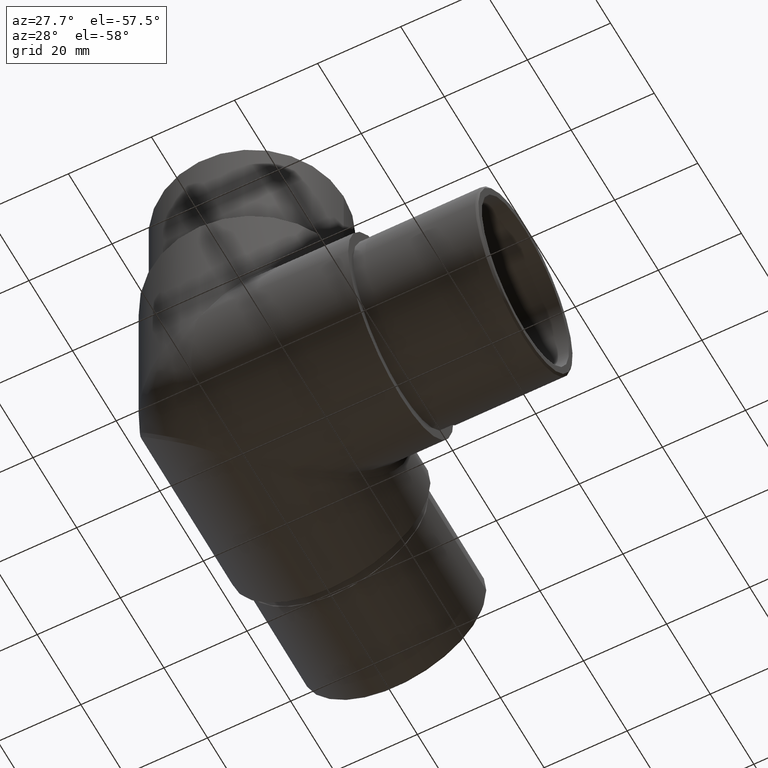
[diagram: clean part render]
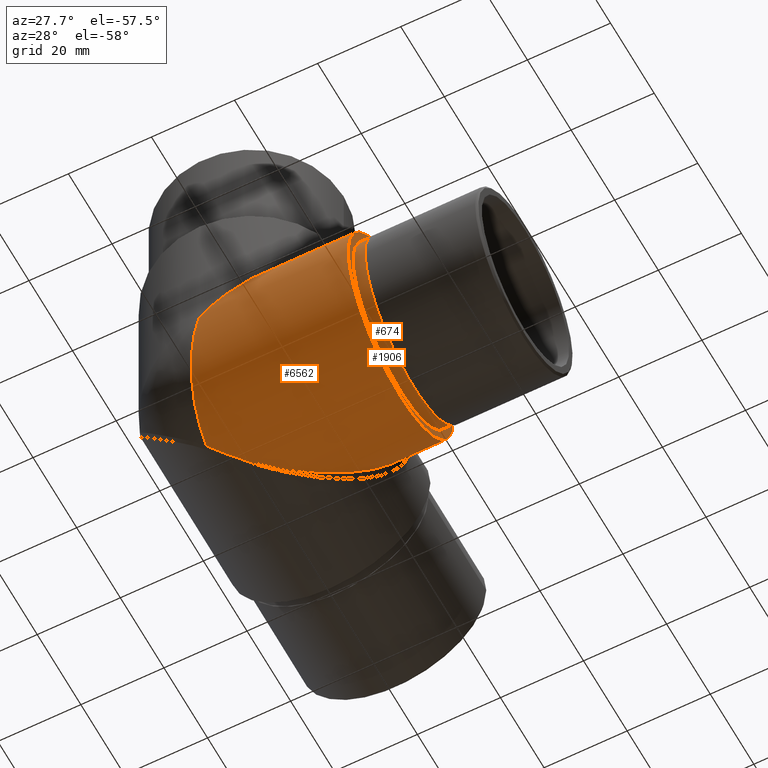
[diagram: same view with one multi-face feature highlighted, each face labeled with its STEP entity id]
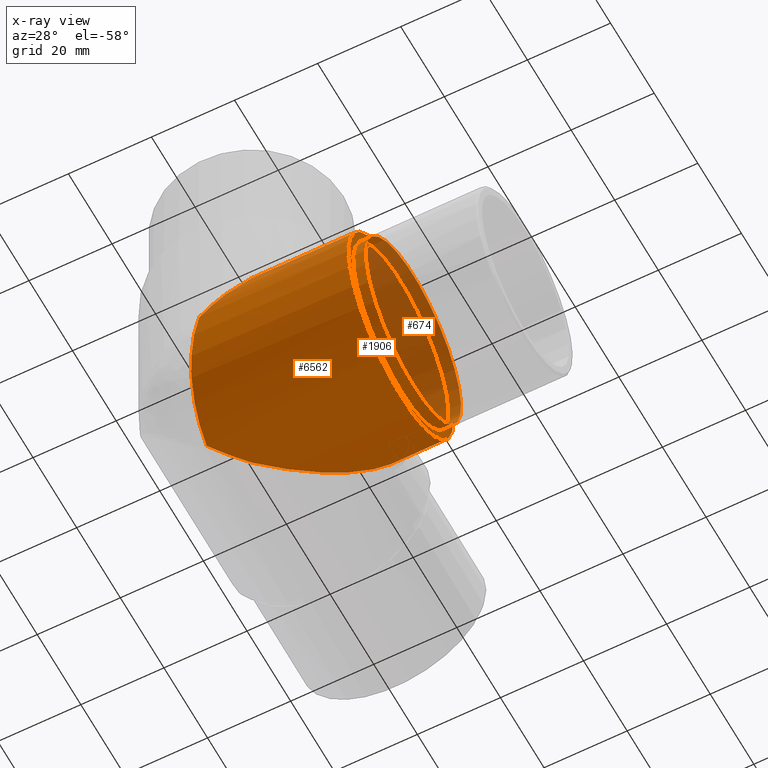
[diagram: x-ray of the same camera — body ghosted, the whole feature saturated]
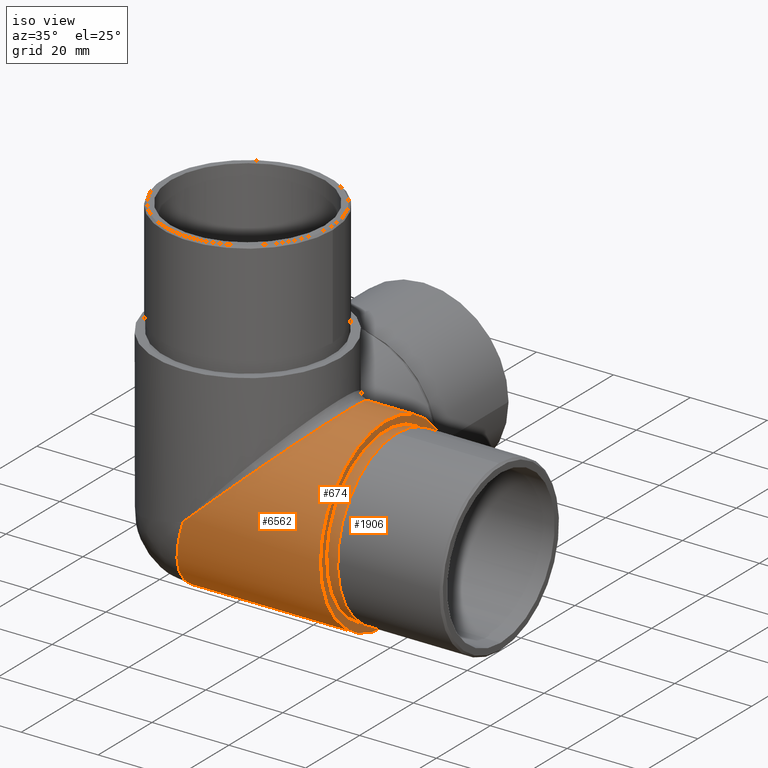
[diagram: same view with one multi-face feature highlighted, each face labeled with its STEP entity id]
A machine part, auxiliary view. The highlighted faces form ONE feature: a stepped (counterbored) hole: 2 coaxial cylindrical walls of radii 21.9 -> 24.15 mm joined by 1 annular planar shoulder face(s). The faces share edges in the B-rep.
The next image is the same camera in x-ray: the body ghosted and the whole hole feature saturated, so the bore chain is visible through the body.
A second angle (iso view) of the same feature is appended — it is thin or edge-on in the first view.
Their STEP definitions:
[1] entity #6562 (Cylinder):
#125 = VERTEX_POINT ( 'NONE', #4727 ) ;
#902 = CARTESIAN_POINT ( 'NONE',  ( -24.15000000000001300, 24.14999999999999900, 24.15000000000000200 ) ) ;
#903 = EDGE_LOOP ( 'NONE', ( #1200, #10387, #2458, #9310 ) ) ;
#952 = VERTEX_POINT ( 'NONE', #11235 ) ;
#1200 = ORIENTED_EDGE ( 'NONE', *, *, #7541, .T. ) ;
#1913 = CARTESIAN_POINT ( 'NONE',  ( -3.265343514882625100, -7.047581271522010500E-012, 13.34752796103898800 ) ) ;
#2090 = ORIENTED_EDGE ( 'NONE', *, *, #5902, .F. ) ;
#2416 = FACE_OUTER_BOUND ( 'NONE', #903, .T. ) ;
#2458 = ORIENTED_EDGE ( 'NONE', *, *, #8643, .T. ) ;
#2982 = CARTESIAN_POINT ( 'NONE',  ( -6.933173538765667700, 16.59080627714714500, 1.213542334083439500 ) ) ;
#3985 = CARTESIAN_POINT ( 'NONE',  ( 5.684341886080801500E-011, 24.15000000000001600, -6.938893903907228400E-015 ) ) ;
#4165 =( BOUNDED_CURVE ( )  B_SPLINE_CURVE ( 3, ( #10898, #4870, #11861, #7755 ),
 .UNSPECIFIED., .F., .T. ) 
 B_SPLINE_CURVE_WITH_KNOTS ( ( 4, 4 ),
 ( 4.712388980385863000, 7.068583470577034500 ),
 .UNSPECIFIED. ) 
 CURVE ( )  GEOMETRIC_REPRESENTATION_ITEM ( )  RATIONAL_B_SPLINE_CURVE ( ( 1.000000000000000000, 0.5884556215770878600, 0.5884556215770878600, 1.000000000000000000 ) ) 
 REPRESENTATION_ITEM ( '' )  );
#4308 = FACE_OUTER_BOUND ( 'NONE', #6377, .T. ) ;
#4555 = DIRECTION ( 'NONE',  ( 0.0000000000000000000, 0.0000000000000000000, -1.000000000000000000 ) ) ;
#4727 = CARTESIAN_POINT ( 'NONE',  ( 5.684341886080801500E-011, 24.15000000000001600, -6.938893903907228400E-015 ) ) ;
#4777 = EDGE_CURVE ( 'NONE', #125, #10178, #4165, .T. ) ;
#4870 = CARTESIAN_POINT ( 'NONE',  ( 27.37045795732557400, 49.42711509252056600, 2.964564470492493500E-011 ) ) ;
#4890 = VERTEX_POINT ( 'NONE', #8870 ) ;
#5499 = CARTESIAN_POINT ( 'NONE',  ( 18.49084232802821100, 41.22662876565513600, 41.22662876565511400 ) ) ;
#5503 =( BOUNDED_CURVE ( )  B_SPLINE_CURVE ( 3, ( #5831, #6707, #11864, #5697 ),
 .UNSPECIFIED., .F., .F. ) 
 B_SPLINE_CURVE_WITH_KNOTS ( ( 4, 4 ),
 ( 5.497787143782137100, 7.853981633973309500 ),
 .UNSPECIFIED. ) 
 CURVE ( )  GEOMETRIC_REPRESENTATION_ITEM ( )  RATIONAL_B_SPLINE_CURVE ( ( 1.000000000000000000, 0.5884556215770875300, 0.5884556215770875300, 1.000000000000000000 ) ) 
 REPRESENTATION_ITEM ( '' )  );
#5697 = CARTESIAN_POINT ( 'NONE',  ( 5.684341886080801500E-011, 3.469446951953614200E-015, 24.14999999999999100 ) ) ;
#5831 = CARTESIAN_POINT ( 'NONE',  ( 18.49084232802821100, 41.22662876565513600, 41.22662876565511400 ) ) ;
#5902 = EDGE_CURVE ( 'NONE', #4890, #4890, #12910, .T. ) ;
#6377 = EDGE_LOOP ( 'NONE', ( #2090 ) ) ;
#6562 = ADVANCED_FACE ( 'NONE', ( #2416, #4308 ), #6983, .T. ) ;
#6707 = CARTESIAN_POINT ( 'NONE',  ( 37.84467875381275800, 23.35300927492106700, 59.10024825638920000 ) ) ;
#6921 = AXIS2_PLACEMENT_3D ( 'NONE', #11251, #8448, #4555 ) ;
#6983 = CYLINDRICAL_SURFACE ( 'NONE', #12778, 24.15000000000000900 ) ;
#7271 =( BOUNDED_CURVE ( )  B_SPLINE_CURVE ( 3, ( #2982, #9976, #11063, #3985 ),
 .UNSPECIFIED., .F., .F. ) 
 B_SPLINE_CURVE_WITH_KNOTS ( ( 4, 4 ),
 ( 4.394028243512486200, 4.712388980385862100 ),
 .UNSPECIFIED. ) 
 CURVE ( )  GEOMETRIC_REPRESENTATION_ITEM ( )  RATIONAL_B_SPLINE_CURVE ( ( 1.000000000000000000, 0.9915716893227704000, 0.9915716893227704000, 1.000000000000000000 ) ) 
 REPRESENTATION_ITEM ( '' )  );
#7541 = EDGE_CURVE ( 'NONE', #9508, #125, #7271, .T. ) ;
#7755 = CARTESIAN_POINT ( 'NONE',  ( 18.49084232802821100, 41.22662876565513600, 41.22662876565511400 ) ) ;
#7989 = EDGE_CURVE ( 'NONE', #952, #9508, #8019, .T. ) ;
#8019 =( BOUNDED_CURVE ( )  B_SPLINE_CURVE ( 3, ( #9795, #1913, #8045, #9123 ),
 .UNSPECIFIED., .F., .T. ) 
 B_SPLINE_CURVE_WITH_KNOTS ( ( 4, 4 ),
 ( 1.570796326794244900, 2.823231916717590100 ),
 .UNSPECIFIED. ) 
 CURVE ( )  GEOMETRIC_REPRESENTATION_ITEM ( )  RATIONAL_B_SPLINE_CURVE ( ( 1.000000000000000000, 0.8734999932208118400, 0.8734999932208118400, 1.000000000000000000 ) ) 
 REPRESENTATION_ITEM ( '' )  );
#8045 = CARTESIAN_POINT ( 'NONE',  ( -5.911088064616806500, 6.331160620449940000, 4.594825101301929700 ) ) ;
#8448 = DIRECTION ( 'NONE',  ( 1.000000000000000000, 0.0000000000000000000, 0.0000000000000000000 ) ) ;
#8643 = EDGE_CURVE ( 'NONE', #10178, #952, #5503, .T. ) ;
#8822 = DIRECTION ( 'NONE',  ( 1.000000000000000000, -0.0000000000000000000, -0.0000000000000000000 ) ) ;
#8870 = CARTESIAN_POINT ( 'NONE',  ( 35.84999999999999400, 24.15000000000001600, 0.0000000000000000000 ) ) ;
#8914 = DIRECTION ( 'NONE',  ( 0.0000000000000000000, 0.0000000000000000000, -1.000000000000000000 ) ) ;
#9123 = CARTESIAN_POINT ( 'NONE',  ( -6.933173538765667700, 16.59080627714714500, 1.213542334083439500 ) ) ;
#9310 = ORIENTED_EDGE ( 'NONE', *, *, #7989, .T. ) ;
#9508 = VERTEX_POINT ( 'NONE', #10929 ) ;
#9795 = CARTESIAN_POINT ( 'NONE',  ( 5.684341886080801500E-011, 3.469446951953614200E-015, 24.14999999999999100 ) ) ;
#9976 = CARTESIAN_POINT ( 'NONE',  ( -4.691246556782749300, 19.03516458933167500, 0.4079524614447487800 ) ) ;
#10178 = VERTEX_POINT ( 'NONE', #5499 ) ;
#10387 = ORIENTED_EDGE ( 'NONE', *, *, #4777, .T. ) ;
#10898 = CARTESIAN_POINT ( 'NONE',  ( 5.684341886080801500E-011, 24.15000000000001600, -6.938893903907228400E-015 ) ) ;
#10929 = CARTESIAN_POINT ( 'NONE',  ( -6.933173538765667700, 16.59080627714714500, 1.213542334083439500 ) ) ;
#11063 = CARTESIAN_POINT ( 'NONE',  ( -2.360544832288879100, 21.57631342213198500, -3.023844713727843500E-012 ) ) ;
#11235 = CARTESIAN_POINT ( 'NONE',  ( 5.684341886080801500E-011, 3.469446951953614200E-015, 24.14999999999999100 ) ) ;
#11251 = CARTESIAN_POINT ( 'NONE',  ( 35.84999999999999400, 24.15000000000001600, 24.15000000000000600 ) ) ;
#11861 = CARTESIAN_POINT ( 'NONE',  ( 37.84467875381274400, 59.10024825638921400, 23.35300927492104300 ) ) ;
#11864 = CARTESIAN_POINT ( 'NONE',  ( 27.37045795732559800, 2.965877470644679800E-011, 49.42711509252058000 ) ) ;
#12778 = AXIS2_PLACEMENT_3D ( 'NONE', #902, #8822, #8914 ) ;
#12910 = CIRCLE ( 'NONE', #6921, 24.15000000000000600 ) ;
[2] entity #674 (Cylinder):
#674 = ADVANCED_FACE ( 'NONE', ( #3662, #1955 ), #878, .T. ) ;
#878 = CYLINDRICAL_SURFACE ( 'NONE', #2565, 21.89999999999999900 ) ;
#1212 = CARTESIAN_POINT ( 'NONE',  ( 38.84999999999999400, 24.15000000000000200, 24.14999999999998800 ) ) ;
#1955 = FACE_OUTER_BOUND ( 'NONE', #7442, .T. ) ;
#2494 = DIRECTION ( 'NONE',  ( 0.0000000000000000000, 0.0000000000000000000, -1.000000000000000000 ) ) ;
#2565 = AXIS2_PLACEMENT_3D ( 'NONE', #6749, #10729, #2767 ) ;
#2767 = DIRECTION ( 'NONE',  ( 3.168444704980469600E-016, 0.0000000000000000000, 1.000000000000000000 ) ) ;
#2776 = EDGE_LOOP ( 'NONE', ( #2950 ) ) ;
#2950 = ORIENTED_EDGE ( 'NONE', *, *, #8061, .T. ) ;
#3378 = DIRECTION ( 'NONE',  ( -1.000000000000000000, -0.0000000000000000000, 4.440892098500625200E-016 ) ) ;
#3403 = AXIS2_PLACEMENT_3D ( 'NONE', #6482, #7492, #2494 ) ;
#3662 = FACE_OUTER_BOUND ( 'NONE', #2776, .T. ) ;
#3786 = VERTEX_POINT ( 'NONE', #8781 ) ;
#3816 = CARTESIAN_POINT ( 'NONE',  ( 38.84999999999998700, 24.15000000000000200, 2.249999999999988000 ) ) ;
#3859 = EDGE_CURVE ( 'NONE', #3786, #3786, #5047, .T. ) ;
#3966 = AXIS2_PLACEMENT_3D ( 'NONE', #1212, #3378, #10250 ) ;
#4446 = ORIENTED_EDGE ( 'NONE', *, *, #3859, .T. ) ;
#5047 = CIRCLE ( 'NONE', #3403, 21.89999999999999900 ) ;
#5394 = CIRCLE ( 'NONE', #3966, 21.89999999999999900 ) ;
#6482 = CARTESIAN_POINT ( 'NONE',  ( 35.84999999999999400, 24.15000000000000200, 24.14999999999998800 ) ) ;
#6749 = CARTESIAN_POINT ( 'NONE',  ( 38.84999999999999400, 24.15000000000000200, 24.14999999999998800 ) ) ;
#7442 = EDGE_LOOP ( 'NONE', ( #4446 ) ) ;
#7492 = DIRECTION ( 'NONE',  ( 1.000000000000000000, 0.0000000000000000000, 0.0000000000000000000 ) ) ;
#8061 = EDGE_CURVE ( 'NONE', #8959, #8959, #5394, .T. ) ;
#8781 = CARTESIAN_POINT ( 'NONE',  ( 35.84999999999999400, 24.15000000000000200, 2.249999999999988000 ) ) ;
#8959 = VERTEX_POINT ( 'NONE', #3816 ) ;
#10250 = DIRECTION ( 'NONE',  ( -3.168444704980469600E-016, 0.0000000000000000000, -1.000000000000000000 ) ) ;
#10729 = DIRECTION ( 'NONE',  ( -1.000000000000000000, -0.0000000000000000000, 4.440892098500624700E-016 ) ) ;
[3] entity #1906 (Plane):
#757 = PLANE ( 'NONE',  #3472 ) ;
#1906 = ADVANCED_FACE ( 'NONE', ( #8513, #5530 ), #757, .T. ) ;
#2494 = DIRECTION ( 'NONE',  ( 0.0000000000000000000, 0.0000000000000000000, -1.000000000000000000 ) ) ;
#2709 = DIRECTION ( 'NONE',  ( 1.000000000000000000, 0.0000000000000000000, 0.0000000000000000000 ) ) ;
#2799 = DIRECTION ( 'NONE',  ( 0.0000000000000000000, 0.0000000000000000000, -1.000000000000000000 ) ) ;
#3393 = ORIENTED_EDGE ( 'NONE', *, *, #3859, .F. ) ;
#3403 = AXIS2_PLACEMENT_3D ( 'NONE', #6482, #7492, #2494 ) ;
#3472 = AXIS2_PLACEMENT_3D ( 'NONE', #11673, #2709, #2799 ) ;
#3786 = VERTEX_POINT ( 'NONE', #8781 ) ;
#3859 = EDGE_CURVE ( 'NONE', #3786, #3786, #5047, .T. ) ;
#4290 = ORIENTED_EDGE ( 'NONE', *, *, #5902, .T. ) ;
#4555 = DIRECTION ( 'NONE',  ( 0.0000000000000000000, 0.0000000000000000000, -1.000000000000000000 ) ) ;
#4890 = VERTEX_POINT ( 'NONE', #8870 ) ;
#5047 = CIRCLE ( 'NONE', #3403, 21.89999999999999900 ) ;
#5530 = FACE_OUTER_BOUND ( 'NONE', #8046, .T. ) ;
#5902 = EDGE_CURVE ( 'NONE', #4890, #4890, #12910, .T. ) ;
#6482 = CARTESIAN_POINT ( 'NONE',  ( 35.84999999999999400, 24.15000000000000200, 24.14999999999998800 ) ) ;
#6921 = AXIS2_PLACEMENT_3D ( 'NONE', #11251, #8448, #4555 ) ;
#7492 = DIRECTION ( 'NONE',  ( 1.000000000000000000, 0.0000000000000000000, 0.0000000000000000000 ) ) ;
#8046 = EDGE_LOOP ( 'NONE', ( #4290 ) ) ;
#8448 = DIRECTION ( 'NONE',  ( 1.000000000000000000, 0.0000000000000000000, 0.0000000000000000000 ) ) ;
#8513 = FACE_BOUND ( 'NONE', #10850, .T. ) ;
#8781 = CARTESIAN_POINT ( 'NONE',  ( 35.84999999999999400, 24.15000000000000200, 2.249999999999988000 ) ) ;
#8870 = CARTESIAN_POINT ( 'NONE',  ( 35.84999999999999400, 24.15000000000001600, 0.0000000000000000000 ) ) ;
#10850 = EDGE_LOOP ( 'NONE', ( #3393 ) ) ;
#11251 = CARTESIAN_POINT ( 'NONE',  ( 35.84999999999999400, 24.15000000000001600, 24.15000000000000600 ) ) ;
#11673 = CARTESIAN_POINT ( 'NONE',  ( 35.84999999999999400, 24.15000000000001600, 24.15000000000000600 ) ) ;
#12910 = CIRCLE ( 'NONE', #6921, 24.15000000000000600 ) ;